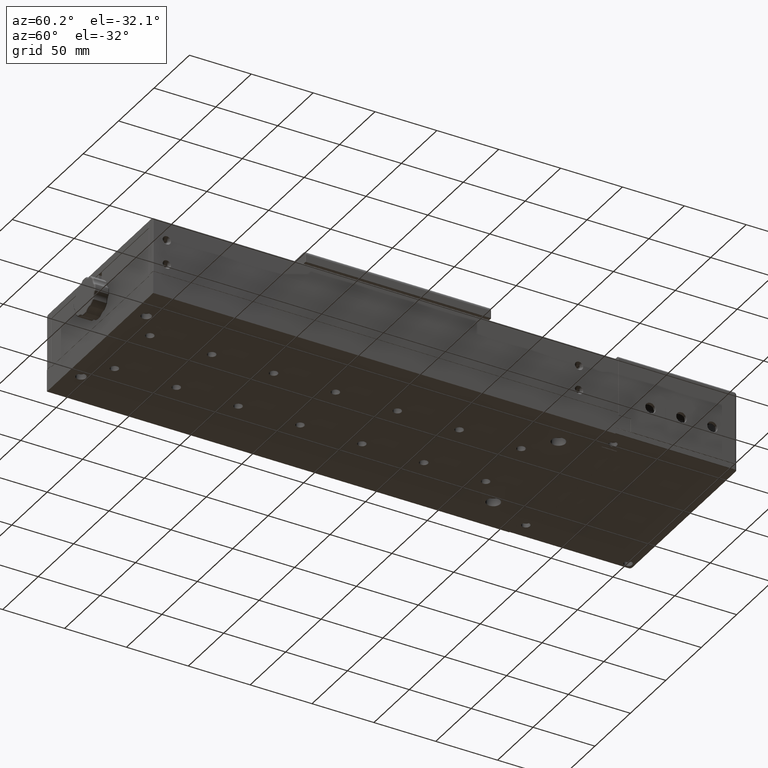
[diagram: clean part render]
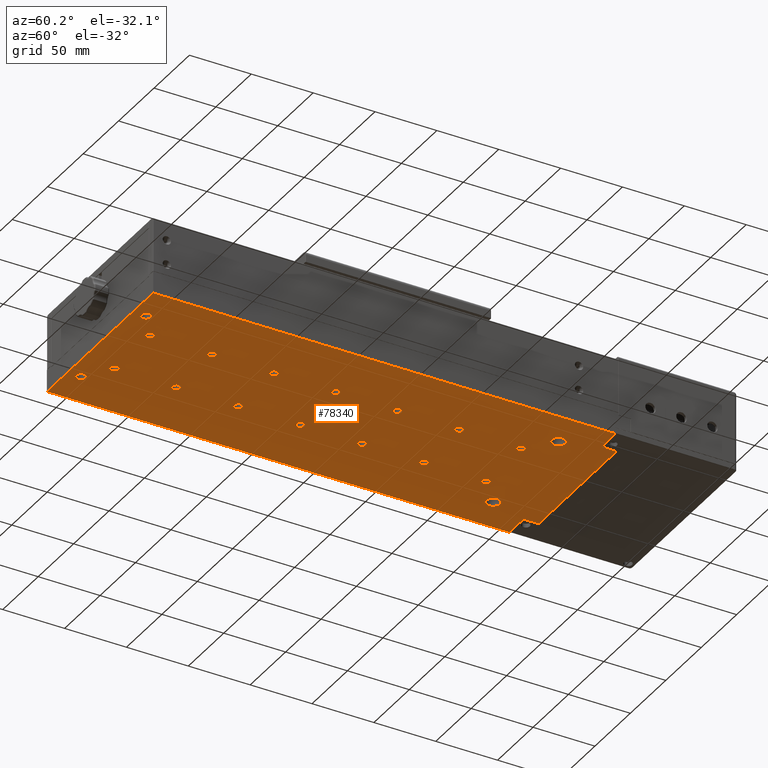
[diagram: same view with one face highlighted and labeled with its STEP entity id]
A machine part, auxiliary view. The second image highlights one B-rep face of the part: STEP entity #78340.
In plain terms, the highlighted planar face has unit normal (0, 0, 1).
Its self-contained STEP definition (entity closure, byte-faithful):
#21 = CIRCLE ( 'NONE', #8953, 3.299999999999997158 ) ;
#92 = CARTESIAN_POINT ( 'NONE',  ( -125.5854323028809887, 263.8311902418279828, -21.95334974644444870 ) ) ;
#376 = DIRECTION ( 'NONE',  ( 0.000000000000000000, 1.000000000000000000, 0.000000000000000000 ) ) ;
#705 = EDGE_CURVE ( 'NONE', #20826, #70421, #11956, .T. ) ;
#842 = CARTESIAN_POINT ( 'NONE',  ( -95.58543230288080395, 216.0311902418279999, -21.95334974644444870 ) ) ;
#869 = LINE ( 'NONE', #25399, #40910 ) ;
#986 = ORIENTED_EDGE ( 'NONE', *, *, #57937, .T. ) ;
#1084 = DIRECTION ( 'NONE',  ( 0.000000000000000000, 1.000000000000000000, 0.000000000000000000 ) ) ;
#1120 = DIRECTION ( 'NONE',  ( 0.000000000000000000, -1.000000000000000000, 0.000000000000000000 ) ) ;
#1170 = DIRECTION ( 'NONE',  ( 0.000000000000000000, 1.000000000000000000, 0.000000000000000000 ) ) ;
#1618 = EDGE_LOOP ( 'NONE', ( #53804, #64914 ) ) ;
#1630 = EDGE_LOOP ( 'NONE', ( #60722, #21272 ) ) ;
#1983 = CARTESIAN_POINT ( 'NONE',  ( -145.5854323028810029, -109.9688097581720001, -21.95334974644444870 ) ) ;
#2063 = VERTEX_POINT ( 'NONE', #5562 ) ;
#2637 = DIRECTION ( 'NONE',  ( 0.000000000000000000, -1.000000000000000000, 0.000000000000000000 ) ) ;
#2675 = EDGE_CURVE ( 'NONE', #61624, #57926, #67382, .T. ) ;
#2847 = DIRECTION ( 'NONE',  ( 0.000000000000000000, 1.000000000000000000, 0.000000000000000000 ) ) ;
#2867 = EDGE_LOOP ( 'NONE', ( #21710, #20650 ) ) ;
#3033 = FACE_BOUND ( 'NONE', #73556, .T. ) ;
#3049 = DIRECTION ( 'NONE',  ( 0.000000000000000000, 0.000000000000000000, 1.000000000000000000 ) ) ;
#3479 = DIRECTION ( 'NONE',  ( 0.000000000000000000, 0.000000000000000000, 1.000000000000000000 ) ) ;
#3680 = CIRCLE ( 'NONE', #16510, 3.299999999999997158 ) ;
#3931 = DIRECTION ( 'NONE',  ( 0.000000000000000000, 0.000000000000000000, 1.000000000000000000 ) ) ;
#4189 = DIRECTION ( 'NONE',  ( -1.000000000000000000, 1.224646799147351975E-16, 0.000000000000000000 ) ) ;
#4206 = LINE ( 'NONE', #66567, #28692 ) ;
#4220 = FACE_BOUND ( 'NONE', #75651, .T. ) ;
#4262 = CARTESIAN_POINT ( 'NONE',  ( -45.58543230288089632, -87.26880975817199726, -21.95334974644444870 ) ) ;
#4554 = AXIS2_PLACEMENT_3D ( 'NONE', #34438, #70659, #15518 ) ;
#5071 = CIRCLE ( 'NONE', #6332, 4.000000000000003553 ) ;
#5562 = CARTESIAN_POINT ( 'NONE',  ( -116.5854323028810029, -94.96880975817200010, -21.95334974644444870 ) ) ;
#5769 = VERTEX_POINT ( 'NONE', #53979 ) ;
#5853 = AXIS2_PLACEMENT_3D ( 'NONE', #68704, #26452, #68303 ) ;
#6280 = DIRECTION ( 'NONE',  ( 0.000000000000000000, 1.000000000000000000, 0.000000000000000000 ) ) ;
#6332 = AXIS2_PLACEMENT_3D ( 'NONE', #75575, #8766, #9155 ) ;
#6454 = VECTOR ( 'NONE', #36711, 1000.000000000000000 ) ;
#6485 = EDGE_CURVE ( 'NONE', #2063, #5769, #40647, .T. ) ;
#6512 = ORIENTED_EDGE ( 'NONE', *, *, #40683, .F. ) ;
#7037 = DIRECTION ( 'NONE',  ( 0.000000000000000000, 1.000000000000000000, 0.000000000000000000 ) ) ;
#7190 = ORIENTED_EDGE ( 'NONE', *, *, #13383, .T. ) ;
#7246 = CARTESIAN_POINT ( 'NONE',  ( -45.58543230288089632, 119.3311902418280113, -21.95334974644444870 ) ) ;
#7257 = CARTESIAN_POINT ( 'NONE',  ( -24.58543230288085013, 234.2311902418280170, -21.95334974644444870 ) ) ;
#7560 = AXIS2_PLACEMENT_3D ( 'NONE', #49274, #25155, #7037 ) ;
#7621 = CARTESIAN_POINT ( 'NONE',  ( -24.58543230288085013, 234.2311902418280170, -21.95334974644444870 ) ) ;
#8128 = CARTESIAN_POINT ( 'NONE',  ( -45.58543230288089632, -30.66880975817205268, -21.95334974644444870 ) ) ;
#8403 = ORIENTED_EDGE ( 'NONE', *, *, #76298, .T. ) ;
#8419 = VERTEX_POINT ( 'NONE', #74635 ) ;
#8647 = EDGE_CURVE ( 'NONE', #17351, #36960, #12415, .T. ) ;
#8766 = DIRECTION ( 'NONE',  ( 0.000000000000000000, 0.000000000000000000, -1.000000000000000000 ) ) ;
#8810 = DIRECTION ( 'NONE',  ( 0.000000000000000000, 0.000000000000000000, 1.000000000000000000 ) ) ;
#8953 = AXIS2_PLACEMENT_3D ( 'NONE', #28403, #3479, #52942 ) ;
#9155 = DIRECTION ( 'NONE',  ( 0.000000000000000000, -1.000000000000000000, 0.000000000000000000 ) ) ;
#9208 = CIRCLE ( 'NONE', #46482, 5.500000000000005329 ) ;
#9830 = ORIENTED_EDGE ( 'NONE', *, *, #24673, .T. ) ;
#10231 = FACE_BOUND ( 'NONE', #31003, .T. ) ;
#10330 = CARTESIAN_POINT ( 'NONE',  ( -45.58543230288089632, -37.26880975817205410, -21.95334974644444870 ) ) ;
#10386 = DIRECTION ( 'NONE',  ( 0.000000000000000000, 0.000000000000000000, 1.000000000000000000 ) ) ;
#10393 = CARTESIAN_POINT ( 'NONE',  ( -24.58543230288085013, 239.7311902418280170, -21.95334974644444870 ) ) ;
#10514 = DIRECTION ( 'NONE',  ( 0.000000000000000000, 1.000000000000000000, 0.000000000000000000 ) ) ;
#10928 = DIRECTION ( 'NONE',  ( 0.000000000000000000, 0.000000000000000000, 1.000000000000000000 ) ) ;
#11074 = VECTOR ( 'NONE', #4189, 1000.000000000000000 ) ;
#11759 = DIRECTION ( 'NONE',  ( 0.000000000000000000, 0.000000000000000000, 1.000000000000000000 ) ) ;
#11956 = CIRCLE ( 'NONE', #42741, 4.000000000000003553 ) ;
#12000 = EDGE_CURVE ( 'NONE', #55115, #16646, #57241, .T. ) ;
#12171 = CARTESIAN_POINT ( 'NONE',  ( 4.414567697119120560, -109.9688097581720001, -21.95334974644444870 ) ) ;
#12199 = CARTESIAN_POINT ( 'NONE',  ( -45.58543230288089632, 19.33119024182800061, -21.95334974644444870 ) ) ;
#12231 = FACE_OUTER_BOUND ( 'NONE', #52003, .T. ) ;
#12327 = CIRCLE ( 'NONE', #22557, 3.299999999999997158 ) ;
#12415 = CIRCLE ( 'NONE', #22709, 3.299999999999997158 ) ;
#12800 = ORIENTED_EDGE ( 'NONE', *, *, #62540, .F. ) ;
#12914 = CARTESIAN_POINT ( 'NONE',  ( -45.58543230288079684, 212.7311902418280170, -21.95334974644444870 ) ) ;
#12994 = VERTEX_POINT ( 'NONE', #15346 ) ;
#13017 = ORIENTED_EDGE ( 'NONE', *, *, #44793, .T. ) ;
#13111 = CARTESIAN_POINT ( 'NONE',  ( -95.58543230288090342, -83.96880975817198589, -21.95334974644444870 ) ) ;
#13175 = EDGE_CURVE ( 'NONE', #16844, #28102, #35455, .T. ) ;
#13247 = AXIS2_PLACEMENT_3D ( 'NONE', #69922, #3931, #46934 ) ;
#13281 = EDGE_CURVE ( 'NONE', #27940, #71586, #21388, .T. ) ;
#13303 = VERTEX_POINT ( 'NONE', #38996 ) ;
#13383 = EDGE_CURVE ( 'NONE', #50871, #70887, #30241, .T. ) ;
#14222 = EDGE_LOOP ( 'NONE', ( #29844, #55646 ) ) ;
#14738 = EDGE_CURVE ( 'NONE', #27756, #13303, #20357, .T. ) ;
#14819 = DIRECTION ( 'NONE',  ( 0.000000000000000000, 0.000000000000000000, -1.000000000000000000 ) ) ;
#14934 = AXIS2_PLACEMENT_3D ( 'NONE', #7257, #55162, #18538 ) ;
#15306 = CARTESIAN_POINT ( 'NONE',  ( -116.5854323028810029, 234.2311902418280170, -21.95334974644444870 ) ) ;
#15346 = CARTESIAN_POINT ( 'NONE',  ( -45.58543230288089632, 69.33119024182799706, -21.95334974644444870 ) ) ;
#15518 = DIRECTION ( 'NONE',  ( 0.000000000000000000, 1.000000000000000000, 0.000000000000000000 ) ) ;
#15526 = CIRCLE ( 'NONE', #60540, 5.500000000000005329 ) ;
#15781 = CARTESIAN_POINT ( 'NONE',  ( -95.58543230288080395, 169.3311902418280113, -21.95334974644444870 ) ) ;
#15821 = DIRECTION ( 'NONE',  ( 0.000000000000000000, 1.000000000000000000, 0.000000000000000000 ) ) ;
#16085 = AXIS2_PLACEMENT_3D ( 'NONE', #33365, #45423, #27333 ) ;
#16422 = CARTESIAN_POINT ( 'NONE',  ( -95.58543230288080395, 166.0311902418280283, -21.95334974644444870 ) ) ;
#16510 = AXIS2_PLACEMENT_3D ( 'NONE', #65657, #10928, #10514 ) ;
#16540 = ORIENTED_EDGE ( 'NONE', *, *, #36539, .F. ) ;
#16646 = VERTEX_POINT ( 'NONE', #63851 ) ;
#16671 = FACE_BOUND ( 'NONE', #1618, .T. ) ;
#16844 = VERTEX_POINT ( 'NONE', #21206 ) ;
#17351 = VERTEX_POINT ( 'NONE', #48004 ) ;
#17472 = VERTEX_POINT ( 'NONE', #31889 ) ;
#17599 = EDGE_CURVE ( 'NONE', #16646, #55115, #70889, .T. ) ;
#17724 = CARTESIAN_POINT ( 'NONE',  ( -15.58543230288080039, 276.0311902418279715, -21.95334974644444870 ) ) ;
#18140 = ORIENTED_EDGE ( 'NONE', *, *, #64853, .F. ) ;
#18213 = CARTESIAN_POINT ( 'NONE',  ( -116.5854323028810029, 228.7311902418280170, -21.95334974644444870 ) ) ;
#18299 = CARTESIAN_POINT ( 'NONE',  ( -45.58543230288089632, 66.03119024182799990, -21.95334974644444870 ) ) ;
#18478 = EDGE_CURVE ( 'NONE', #54043, #12994, #22252, .T. ) ;
#18538 = DIRECTION ( 'NONE',  ( 0.000000000000000000, -1.000000000000000000, 0.000000000000000000 ) ) ;
#18621 = ORIENTED_EDGE ( 'NONE', *, *, #18478, .T. ) ;
#18803 = DIRECTION ( 'NONE',  ( 0.000000000000000000, 1.000000000000000000, 0.000000000000000000 ) ) ;
#19070 = VECTOR ( 'NONE', #44146, 1000.000000000000000 ) ;
#19403 = EDGE_CURVE ( 'NONE', #76847, #8419, #41247, .T. ) ;
#19650 = DIRECTION ( 'NONE',  ( 0.000000000000000000, 0.000000000000000000, 1.000000000000000000 ) ) ;
#19704 = DIRECTION ( 'NONE',  ( 0.000000000000000000, 1.000000000000000000, 0.000000000000000000 ) ) ;
#19718 = DIRECTION ( 'NONE',  ( 0.000000000000000000, 0.000000000000000000, 1.000000000000000000 ) ) ;
#19754 = CARTESIAN_POINT ( 'NONE',  ( -45.58543230288079684, 219.3311902418280113, -21.95334974644444870 ) ) ;
#19886 = CARTESIAN_POINT ( 'NONE',  ( -15.58543230288080039, 263.8311902418279828, -21.95334974644444870 ) ) ;
#19941 = EDGE_CURVE ( 'NONE', #36767, #52858, #55774, .T. ) ;
#20004 = CARTESIAN_POINT ( 'NONE',  ( -116.5854323028810029, -98.96880975817198589, -21.95334974644444870 ) ) ;
#20322 = ORIENTED_EDGE ( 'NONE', *, *, #8647, .T. ) ;
#20357 = CIRCLE ( 'NONE', #57640, 3.300000000000000711 ) ;
#20510 = CARTESIAN_POINT ( 'NONE',  ( -116.5854323028810029, 234.2311902418280170, -21.95334974644444870 ) ) ;
#20650 = ORIENTED_EDGE ( 'NONE', *, *, #66308, .T. ) ;
#20683 = DIRECTION ( 'NONE',  ( 0.000000000000000000, 1.000000000000000000, 0.000000000000000000 ) ) ;
#20817 = EDGE_CURVE ( 'NONE', #59725, #54901, #69997, .T. ) ;
#20826 = VERTEX_POINT ( 'NONE', #52321 ) ;
#21206 = CARTESIAN_POINT ( 'NONE',  ( -95.58543230288080395, 212.7311902418280170, -21.95334974644444870 ) ) ;
#21272 = ORIENTED_EDGE ( 'NONE', *, *, #39471, .T. ) ;
#21368 = DIRECTION ( 'NONE',  ( 0.000000000000000000, 0.000000000000000000, -1.000000000000000000 ) ) ;
#21388 = CIRCLE ( 'NONE', #14934, 5.500000000000005329 ) ;
#21415 = VERTEX_POINT ( 'NONE', #61752 ) ;
#21462 = EDGE_CURVE ( 'NONE', #12994, #54043, #12327, .T. ) ;
#21536 = FACE_BOUND ( 'NONE', #1630, .T. ) ;
#21597 = VERTEX_POINT ( 'NONE', #19886 ) ;
#21710 = ORIENTED_EDGE ( 'NONE', *, *, #14738, .T. ) ;
#22161 = CIRCLE ( 'NONE', #78702, 3.299999999999997158 ) ;
#22190 = DIRECTION ( 'NONE',  ( 0.000000000000000000, 0.000000000000000000, 1.000000000000000000 ) ) ;
#22252 = CIRCLE ( 'NONE', #67226, 3.299999999999997158 ) ;
#22557 = AXIS2_PLACEMENT_3D ( 'NONE', #18299, #55325, #36804 ) ;
#22564 = CARTESIAN_POINT ( 'NONE',  ( -45.58543230288089632, 16.03119024182799990, -21.95334974644444870 ) ) ;
#22709 = AXIS2_PLACEMENT_3D ( 'NONE', #45206, #46390, #15821 ) ;
#22878 = EDGE_CURVE ( 'NONE', #37940, #49170, #31013, .T. ) ;
#23123 = FACE_BOUND ( 'NONE', #57629, .T. ) ;
#23350 = DIRECTION ( 'NONE',  ( 0.000000000000000000, 0.000000000000000000, -1.000000000000000000 ) ) ;
#24284 = CIRCLE ( 'NONE', #7560, 3.300000000000000711 ) ;
#24314 = ORIENTED_EDGE ( 'NONE', *, *, #28626, .F. ) ;
#24329 = FACE_BOUND ( 'NONE', #79569, .T. ) ;
#24489 = EDGE_CURVE ( 'NONE', #46022, #58326, #78325, .T. ) ;
#24673 = EDGE_CURVE ( 'NONE', #70887, #50871, #60330, .T. ) ;
#24813 = CARTESIAN_POINT ( 'NONE',  ( -45.58543230288089632, 16.03119024182799990, -21.95334974644444870 ) ) ;
#25014 = DIRECTION ( 'NONE',  ( 1.000000000000000000, -1.224646799147351975E-16, 0.000000000000000000 ) ) ;
#25155 = DIRECTION ( 'NONE',  ( 0.000000000000000000, 0.000000000000000000, 1.000000000000000000 ) ) ;
#25399 = CARTESIAN_POINT ( 'NONE',  ( -145.5854323028810029, -109.9688097581720001, -21.95334974644444870 ) ) ;
#25407 = DIRECTION ( 'NONE',  ( 0.000000000000000000, 0.000000000000000000, 1.000000000000000000 ) ) ;
#25681 = CIRCLE ( 'NONE', #52664, 3.299999999999997158 ) ;
#25916 = EDGE_CURVE ( 'NONE', #5769, #2063, #28138, .T. ) ;
#26366 = EDGE_LOOP ( 'NONE', ( #8403, #68693 ) ) ;
#26452 = DIRECTION ( 'NONE',  ( 0.000000000000000000, 0.000000000000000000, 1.000000000000000000 ) ) ;
#26559 = EDGE_CURVE ( 'NONE', #58326, #46022, #25681, .T. ) ;
#26855 = EDGE_LOOP ( 'NONE', ( #13017, #41678 ) ) ;
#27048 = DIRECTION ( 'NONE',  ( 0.000000000000000000, 1.000000000000000000, 0.000000000000000000 ) ) ;
#27053 = ORIENTED_EDGE ( 'NONE', *, *, #28182, .F. ) ;
#27263 = EDGE_CURVE ( 'NONE', #37812, #17472, #38579, .T. ) ;
#27333 = DIRECTION ( 'NONE',  ( 0.000000000000000000, 1.000000000000000000, 0.000000000000000000 ) ) ;
#27756 = VERTEX_POINT ( 'NONE', #12199 ) ;
#27804 = LINE ( 'NONE', #72444, #59070 ) ;
#27885 = EDGE_CURVE ( 'NONE', #30827, #76123, #15526, .T. ) ;
#27940 = VERTEX_POINT ( 'NONE', #10393 ) ;
#28102 = VERTEX_POINT ( 'NONE', #55464 ) ;
#28138 = CIRCLE ( 'NONE', #78240, 4.000000000000003553 ) ;
#28182 = EDGE_CURVE ( 'NONE', #59838, #67961, #74745, .T. ) ;
#28187 = CARTESIAN_POINT ( 'NONE',  ( -95.58543230288080395, 166.0311902418280283, -21.95334974644444870 ) ) ;
#28268 = CIRCLE ( 'NONE', #46215, 3.300000000000000711 ) ;
#28356 = CARTESIAN_POINT ( 'NONE',  ( -116.5854323028810029, -98.96880975817198589, -21.95334974644444870 ) ) ;
#28403 = CARTESIAN_POINT ( 'NONE',  ( -45.58543230288089632, 116.0311902418279999, -21.95334974644444870 ) ) ;
#28495 = CARTESIAN_POINT ( 'NONE',  ( -95.58543230288090342, 69.33119024182799706, -21.95334974644444870 ) ) ;
#28626 = EDGE_CURVE ( 'NONE', #49170, #59838, #41139, .T. ) ;
#28692 = VECTOR ( 'NONE', #28744, 1000.000000000000000 ) ;
#28729 = LINE ( 'NONE', #77821, #11074 ) ;
#28744 = DIRECTION ( 'NONE',  ( -1.224646799147351975E-16, -1.000000000000000000, 0.000000000000000000 ) ) ;
#28773 = DIRECTION ( 'NONE',  ( 0.000000000000000000, 1.000000000000000000, 0.000000000000000000 ) ) ;
#28970 = CARTESIAN_POINT ( 'NONE',  ( -95.58543230288090342, 66.03119024182799990, -21.95334974644444870 ) ) ;
#29164 = ORIENTED_EDGE ( 'NONE', *, *, #24489, .T. ) ;
#29561 = FACE_BOUND ( 'NONE', #75899, .T. ) ;
#29827 = ORIENTED_EDGE ( 'NONE', *, *, #19941, .T. ) ;
#29844 = ORIENTED_EDGE ( 'NONE', *, *, #74666, .F. ) ;
#30127 = EDGE_LOOP ( 'NONE', ( #42059, #43867 ) ) ;
#30241 = CIRCLE ( 'NONE', #16085, 3.299999999999997158 ) ;
#30304 = CARTESIAN_POINT ( 'NONE',  ( -95.58543230288080395, 112.7311902418280027, -21.95334974644444870 ) ) ;
#30446 = EDGE_CURVE ( 'NONE', #52858, #36767, #67921, .T. ) ;
#30827 = VERTEX_POINT ( 'NONE', #18213 ) ;
#31003 = EDGE_LOOP ( 'NONE', ( #36124, #16540 ) ) ;
#31013 = LINE ( 'NONE', #78236, #39750 ) ;
#31129 = DIRECTION ( 'NONE',  ( 0.000000000000000000, 0.000000000000000000, 1.000000000000000000 ) ) ;
#31344 = DIRECTION ( 'NONE',  ( 0.000000000000000000, 0.000000000000000000, 1.000000000000000000 ) ) ;
#31668 = DIRECTION ( 'NONE',  ( 0.000000000000000000, 0.000000000000000000, 1.000000000000000000 ) ) ;
#31824 = DIRECTION ( 'NONE',  ( 0.000000000000000000, 1.000000000000000000, 0.000000000000000000 ) ) ;
#31889 = CARTESIAN_POINT ( 'NONE',  ( -95.58543230288090342, -30.66880975817205268, -21.95334974644444870 ) ) ;
#32284 = AXIS2_PLACEMENT_3D ( 'NONE', #38618, #63178, #51096 ) ;
#32291 = ORIENTED_EDGE ( 'NONE', *, *, #27263, .T. ) ;
#32478 = VERTEX_POINT ( 'NONE', #35545 ) ;
#33212 = ORIENTED_EDGE ( 'NONE', *, *, #64572, .T. ) ;
#33365 = CARTESIAN_POINT ( 'NONE',  ( -45.58543230288079684, 216.0311902418279999, -21.95334974644444870 ) ) ;
#34438 = CARTESIAN_POINT ( 'NONE',  ( -45.58543230288089632, 116.0311902418279999, -21.95334974644444870 ) ) ;
#34576 = CARTESIAN_POINT ( 'NONE',  ( -95.58543230288090342, 62.73119024182799564, -21.95334974644444870 ) ) ;
#34749 = EDGE_CURVE ( 'NONE', #32478, #75441, #67303, .T. ) ;
#34883 = CARTESIAN_POINT ( 'NONE',  ( -24.58543230288085013, 228.7311902418280170, -21.95334974644444870 ) ) ;
#35151 = ORIENTED_EDGE ( 'NONE', *, *, #34749, .F. ) ;
#35278 = DIRECTION ( 'NONE',  ( 0.000000000000000000, 1.000000000000000000, 0.000000000000000000 ) ) ;
#35455 = CIRCLE ( 'NONE', #45775, 3.299999999999997158 ) ;
#35459 = AXIS2_PLACEMENT_3D ( 'NONE', #16422, #10386, #58707 ) ;
#35545 = CARTESIAN_POINT ( 'NONE',  ( 4.414567697119120560, -109.9688097581720001, -21.95334974644444870 ) ) ;
#35754 = VERTEX_POINT ( 'NONE', #63653 ) ;
#36124 = ORIENTED_EDGE ( 'NONE', *, *, #27885, .F. ) ;
#36166 = VERTEX_POINT ( 'NONE', #7246 ) ;
#36299 = EDGE_LOOP ( 'NONE', ( #20322, #986 ) ) ;
#36445 = DIRECTION ( 'NONE',  ( 0.000000000000000000, 0.000000000000000000, 1.000000000000000000 ) ) ;
#36539 = EDGE_CURVE ( 'NONE', #76123, #30827, #9208, .T. ) ;
#36711 = DIRECTION ( 'NONE',  ( 1.224646799147351975E-16, 1.000000000000000000, 0.000000000000000000 ) ) ;
#36767 = VERTEX_POINT ( 'NONE', #63833 ) ;
#36804 = DIRECTION ( 'NONE',  ( 0.000000000000000000, 1.000000000000000000, 0.000000000000000000 ) ) ;
#36960 = VERTEX_POINT ( 'NONE', #4262 ) ;
#37572 = CARTESIAN_POINT ( 'NONE',  ( -95.58543230288090342, -80.66880975817198873, -21.95334974644444870 ) ) ;
#37812 = VERTEX_POINT ( 'NONE', #64811 ) ;
#37940 = VERTEX_POINT ( 'NONE', #17724 ) ;
#38177 = DIRECTION ( 'NONE',  ( 0.000000000000000000, -1.000000000000000000, 0.000000000000000000 ) ) ;
#38579 = CIRCLE ( 'NONE', #46258, 3.300000000000000711 ) ;
#38618 = CARTESIAN_POINT ( 'NONE',  ( -95.58543230288090342, -33.96880975817204984, -21.95334974644444870 ) ) ;
#38776 = DIRECTION ( 'NONE',  ( 0.000000000000000000, 0.000000000000000000, 1.000000000000000000 ) ) ;
#38996 = CARTESIAN_POINT ( 'NONE',  ( -45.58543230288089632, 12.73119024182800096, -21.95334974644444870 ) ) ;
#39206 = CIRCLE ( 'NONE', #4554, 3.299999999999997158 ) ;
#39471 = EDGE_CURVE ( 'NONE', #54901, #59725, #70151, .T. ) ;
#39619 = FACE_BOUND ( 'NONE', #26366, .T. ) ;
#39750 = VECTOR ( 'NONE', #55567, 1000.000000000000000 ) ;
#40242 = CIRCLE ( 'NONE', #13247, 3.299999999999997158 ) ;
#40647 = CIRCLE ( 'NONE', #59920, 4.000000000000003553 ) ;
#40683 = EDGE_CURVE ( 'NONE', #67961, #72418, #4206, .T. ) ;
#40887 = AXIS2_PLACEMENT_3D ( 'NONE', #65893, #43726, #18803 ) ;
#40910 = VECTOR ( 'NONE', #25014, 1000.000000000000000 ) ;
#41139 = LINE ( 'NONE', #78193, #62538 ) ;
#41247 = CIRCLE ( 'NONE', #54090, 3.299999999999997158 ) ;
#41590 = CARTESIAN_POINT ( 'NONE',  ( -145.5854323028810029, -109.9688097581720001, -21.95334974644444870 ) ) ;
#41662 = CARTESIAN_POINT ( 'NONE',  ( -95.58543230288090342, -33.96880975817204984, -21.95334974644444870 ) ) ;
#41678 = ORIENTED_EDGE ( 'NONE', *, *, #78994, .T. ) ;
#41718 = AXIS2_PLACEMENT_3D ( 'NONE', #28187, #70435, #64785 ) ;
#42059 = ORIENTED_EDGE ( 'NONE', *, *, #25916, .F. ) ;
#42335 = CARTESIAN_POINT ( 'NONE',  ( -95.58543230288080395, 216.0311902418279999, -21.95334974644444870 ) ) ;
#42741 = AXIS2_PLACEMENT_3D ( 'NONE', #53939, #23350, #47869 ) ;
#42882 = AXIS2_PLACEMENT_3D ( 'NONE', #13111, #3049, #28773 ) ;
#43726 = DIRECTION ( 'NONE',  ( 0.000000000000000000, 0.000000000000000000, 1.000000000000000000 ) ) ;
#43756 = EDGE_LOOP ( 'NONE', ( #66177, #18140 ) ) ;
#43867 = ORIENTED_EDGE ( 'NONE', *, *, #6485, .F. ) ;
#43874 = CARTESIAN_POINT ( 'NONE',  ( -95.58543230288090342, 16.03119024182795016, -21.95334974644444870 ) ) ;
#43993 = CARTESIAN_POINT ( 'NONE',  ( -145.5854323028810029, 263.8311902418279828, -21.95334974644444870 ) ) ;
#44069 = EDGE_LOOP ( 'NONE', ( #63056, #79133 ) ) ;
#44146 = DIRECTION ( 'NONE',  ( -1.000000000000000000, 1.224646799147351975E-16, 0.000000000000000000 ) ) ;
#44522 = DIRECTION ( 'NONE',  ( 0.000000000000000000, 0.000000000000000000, -1.000000000000000000 ) ) ;
#44570 = ORIENTED_EDGE ( 'NONE', *, *, #26559, .T. ) ;
#44793 = EDGE_CURVE ( 'NONE', #35754, #21415, #24284, .T. ) ;
#44905 = CARTESIAN_POINT ( 'NONE',  ( -45.58543230288089632, -33.96880975817204984, -21.95334974644444870 ) ) ;
#45206 = CARTESIAN_POINT ( 'NONE',  ( -45.58543230288089632, -83.96880975817198589, -21.95334974644444870 ) ) ;
#45397 = AXIS2_PLACEMENT_3D ( 'NONE', #41590, #31129, #48040 ) ;
#45423 = DIRECTION ( 'NONE',  ( 0.000000000000000000, 0.000000000000000000, 1.000000000000000000 ) ) ;
#45518 = EDGE_CURVE ( 'NONE', #21597, #37940, #27804, .T. ) ;
#45775 = AXIS2_PLACEMENT_3D ( 'NONE', #842, #19718, #49099 ) ;
#45883 = DIRECTION ( 'NONE',  ( 0.000000000000000000, -1.000000000000000000, 0.000000000000000000 ) ) ;
#45920 = CARTESIAN_POINT ( 'NONE',  ( -45.58543230288089632, 166.0311902418280283, -21.95334974644444870 ) ) ;
#46002 = AXIS2_PLACEMENT_3D ( 'NONE', #24813, #67059, #1084 ) ;
#46022 = VERTEX_POINT ( 'NONE', #28495 ) ;
#46044 = FACE_BOUND ( 'NONE', #30127, .T. ) ;
#46215 = AXIS2_PLACEMENT_3D ( 'NONE', #44905, #31668, #56232 ) ;
#46258 = AXIS2_PLACEMENT_3D ( 'NONE', #41662, #36445, #73867 ) ;
#46390 = DIRECTION ( 'NONE',  ( 0.000000000000000000, 0.000000000000000000, 1.000000000000000000 ) ) ;
#46482 = AXIS2_PLACEMENT_3D ( 'NONE', #15306, #21368, #45883 ) ;
#46934 = DIRECTION ( 'NONE',  ( 0.000000000000000000, 1.000000000000000000, 0.000000000000000000 ) ) ;
#47180 = DIRECTION ( 'NONE',  ( -1.224646799147351975E-16, -1.000000000000000000, 0.000000000000000000 ) ) ;
#47242 = FACE_BOUND ( 'NONE', #43756, .T. ) ;
#47641 = FACE_BOUND ( 'NONE', #26855, .T. ) ;
#47869 = DIRECTION ( 'NONE',  ( 0.000000000000000000, -1.000000000000000000, 0.000000000000000000 ) ) ;
#48004 = CARTESIAN_POINT ( 'NONE',  ( -45.58543230288089632, -80.66880975817198873, -21.95334974644444870 ) ) ;
#48040 = DIRECTION ( 'NONE',  ( 1.000000000000000000, 0.000000000000000000, 0.000000000000000000 ) ) ;
#48540 = EDGE_CURVE ( 'NONE', #17472, #37812, #48995, .T. ) ;
#48995 = CIRCLE ( 'NONE', #32284, 3.300000000000000711 ) ;
#49099 = DIRECTION ( 'NONE',  ( 0.000000000000000000, 1.000000000000000000, 0.000000000000000000 ) ) ;
#49170 = VERTEX_POINT ( 'NONE', #79538 ) ;
#49274 = CARTESIAN_POINT ( 'NONE',  ( -95.58543230288090342, 16.03119024182795016, -21.95334974644444870 ) ) ;
#49287 = CARTESIAN_POINT ( 'NONE',  ( 4.414567697119175627, 263.8311902418279828, -21.95334974644444870 ) ) ;
#49927 = CARTESIAN_POINT ( 'NONE',  ( -45.58543230288089632, 112.7311902418280027, -21.95334974644444870 ) ) ;
#50871 = VERTEX_POINT ( 'NONE', #12914 ) ;
#50927 = ORIENTED_EDGE ( 'NONE', *, *, #13175, .T. ) ;
#51096 = DIRECTION ( 'NONE',  ( 0.000000000000000000, 1.000000000000000000, 0.000000000000000000 ) ) ;
#51911 = CIRCLE ( 'NONE', #59614, 5.500000000000005329 ) ;
#52003 = EDGE_LOOP ( 'NONE', ( #67995, #73698, #12800, #35151, #55518, #6512, #27053, #24314 ) ) ;
#52111 = FACE_BOUND ( 'NONE', #2867, .T. ) ;
#52321 = CARTESIAN_POINT ( 'NONE',  ( -24.58543230288090342, -102.9688097581719859, -21.95334974644444870 ) ) ;
#52664 = AXIS2_PLACEMENT_3D ( 'NONE', #61960, #8810, #19704 ) ;
#52858 = VERTEX_POINT ( 'NONE', #37572 ) ;
#52892 = DIRECTION ( 'NONE',  ( 0.000000000000000000, 0.000000000000000000, -1.000000000000000000 ) ) ;
#52942 = DIRECTION ( 'NONE',  ( 0.000000000000000000, 1.000000000000000000, 0.000000000000000000 ) ) ;
#53684 = ORIENTED_EDGE ( 'NONE', *, *, #30446, .T. ) ;
#53804 = ORIENTED_EDGE ( 'NONE', *, *, #2675, .T. ) ;
#53939 = CARTESIAN_POINT ( 'NONE',  ( -24.58543230288090342, -98.96880975817198589, -21.95334974644444870 ) ) ;
#53979 = CARTESIAN_POINT ( 'NONE',  ( -116.5854323028810029, -102.9688097581719859, -21.95334974644444870 ) ) ;
#54043 = VERTEX_POINT ( 'NONE', #55027 ) ;
#54090 = AXIS2_PLACEMENT_3D ( 'NONE', #60829, #19650, #1170 ) ;
#54198 = AXIS2_PLACEMENT_3D ( 'NONE', #45920, #22190, #27048 ) ;
#54901 = VERTEX_POINT ( 'NONE', #70905 ) ;
#55027 = CARTESIAN_POINT ( 'NONE',  ( -45.58543230288089632, 62.73119024182799564, -21.95334974644444870 ) ) ;
#55115 = VERTEX_POINT ( 'NONE', #62725 ) ;
#55162 = DIRECTION ( 'NONE',  ( 0.000000000000000000, 0.000000000000000000, -1.000000000000000000 ) ) ;
#55325 = DIRECTION ( 'NONE',  ( 0.000000000000000000, 0.000000000000000000, 1.000000000000000000 ) ) ;
#55464 = CARTESIAN_POINT ( 'NONE',  ( -95.58543230288080395, 219.3311902418280113, -21.95334974644444870 ) ) ;
#55518 = ORIENTED_EDGE ( 'NONE', *, *, #64777, .F. ) ;
#55567 = DIRECTION ( 'NONE',  ( -1.000000000000000000, 1.224646799147351975E-16, 0.000000000000000000 ) ) ;
#55646 = ORIENTED_EDGE ( 'NONE', *, *, #13281, .F. ) ;
#55656 = DIRECTION ( 'NONE',  ( 0.000000000000000000, 0.000000000000000000, -1.000000000000000000 ) ) ;
#55774 = CIRCLE ( 'NONE', #42882, 3.299999999999997158 ) ;
#56232 = DIRECTION ( 'NONE',  ( 0.000000000000000000, 1.000000000000000000, 0.000000000000000000 ) ) ;
#57102 = CIRCLE ( 'NONE', #69953, 3.300000000000000711 ) ;
#57241 = CIRCLE ( 'NONE', #5853, 3.299999999999997158 ) ;
#57629 = EDGE_LOOP ( 'NONE', ( #67648, #32291 ) ) ;
#57640 = AXIS2_PLACEMENT_3D ( 'NONE', #22564, #38776, #20683 ) ;
#57926 = VERTEX_POINT ( 'NONE', #10330 ) ;
#57937 = EDGE_CURVE ( 'NONE', #36960, #17351, #40242, .T. ) ;
#58147 = FACE_BOUND ( 'NONE', #76125, .T. ) ;
#58326 = VERTEX_POINT ( 'NONE', #34576 ) ;
#58383 = DIRECTION ( 'NONE',  ( 1.224646799147351975E-16, 1.000000000000000000, 0.000000000000000000 ) ) ;
#58707 = DIRECTION ( 'NONE',  ( 0.000000000000000000, 1.000000000000000000, 0.000000000000000000 ) ) ;
#59070 = VECTOR ( 'NONE', #58383, 1000.000000000000000 ) ;
#59327 = FACE_BOUND ( 'NONE', #36299, .T. ) ;
#59422 = CARTESIAN_POINT ( 'NONE',  ( -24.58543230288090342, -94.96880975817200010, -21.95334974644444870 ) ) ;
#59614 = AXIS2_PLACEMENT_3D ( 'NONE', #7621, #14819, #38177 ) ;
#59725 = VERTEX_POINT ( 'NONE', #15781 ) ;
#59838 = VERTEX_POINT ( 'NONE', #92 ) ;
#59920 = AXIS2_PLACEMENT_3D ( 'NONE', #28356, #52892, #2637 ) ;
#60168 = CIRCLE ( 'NONE', #46002, 3.300000000000000711 ) ;
#60330 = CIRCLE ( 'NONE', #66766, 3.299999999999997158 ) ;
#60540 = AXIS2_PLACEMENT_3D ( 'NONE', #20510, #55656, #75628 ) ;
#60722 = ORIENTED_EDGE ( 'NONE', *, *, #20817, .T. ) ;
#60829 = CARTESIAN_POINT ( 'NONE',  ( -95.58543230288080395, 116.0311902418279999, -21.95334974644444870 ) ) ;
#60861 = DIRECTION ( 'NONE',  ( 0.000000000000000000, 1.000000000000000000, 0.000000000000000000 ) ) ;
#61323 = ORIENTED_EDGE ( 'NONE', *, *, #19403, .T. ) ;
#61624 = VERTEX_POINT ( 'NONE', #8128 ) ;
#61668 = AXIS2_PLACEMENT_3D ( 'NONE', #28970, #76857, #2847 ) ;
#61752 = CARTESIAN_POINT ( 'NONE',  ( -95.58543230288090342, 12.73119024182796011, -21.95334974644444870 ) ) ;
#61960 = CARTESIAN_POINT ( 'NONE',  ( -95.58543230288090342, 66.03119024182799990, -21.95334974644444870 ) ) ;
#62177 = DIRECTION ( 'NONE',  ( 0.000000000000000000, 0.000000000000000000, 1.000000000000000000 ) ) ;
#62538 = VECTOR ( 'NONE', #47180, 1000.000000000000000 ) ;
#62540 = EDGE_CURVE ( 'NONE', #75441, #21597, #28729, .T. ) ;
#62725 = CARTESIAN_POINT ( 'NONE',  ( -45.58543230288089632, 162.7311902418279885, -21.95334974644444870 ) ) ;
#63056 = ORIENTED_EDGE ( 'NONE', *, *, #17599, .T. ) ;
#63178 = DIRECTION ( 'NONE',  ( 0.000000000000000000, 0.000000000000000000, 1.000000000000000000 ) ) ;
#63653 = CARTESIAN_POINT ( 'NONE',  ( -95.58543230288090342, 19.33119024182795087, -21.95334974644444870 ) ) ;
#63833 = CARTESIAN_POINT ( 'NONE',  ( -95.58543230288090342, -87.26880975817211095, -21.95334974644444870 ) ) ;
#63851 = CARTESIAN_POINT ( 'NONE',  ( -45.58543230288089632, 169.3311902418280113, -21.95334974644444870 ) ) ;
#64572 = EDGE_CURVE ( 'NONE', #8419, #76847, #3680, .T. ) ;
#64777 = EDGE_CURVE ( 'NONE', #72418, #32478, #869, .T. ) ;
#64785 = DIRECTION ( 'NONE',  ( 0.000000000000000000, 1.000000000000000000, 0.000000000000000000 ) ) ;
#64811 = CARTESIAN_POINT ( 'NONE',  ( -95.58543230288090342, -37.26880975817205410, -21.95334974644444870 ) ) ;
#64853 = EDGE_CURVE ( 'NONE', #70421, #20826, #5071, .T. ) ;
#64914 = ORIENTED_EDGE ( 'NONE', *, *, #69322, .T. ) ;
#65657 = CARTESIAN_POINT ( 'NONE',  ( -95.58543230288080395, 116.0311902418279999, -21.95334974644444870 ) ) ;
#65893 = CARTESIAN_POINT ( 'NONE',  ( -95.58543230288090342, -83.96880975817198589, -21.95334974644444870 ) ) ;
#66177 = ORIENTED_EDGE ( 'NONE', *, *, #705, .F. ) ;
#66263 = DIRECTION ( 'NONE',  ( 0.000000000000000000, 0.000000000000000000, 1.000000000000000000 ) ) ;
#66308 = EDGE_CURVE ( 'NONE', #13303, #27756, #60168, .T. ) ;
#66567 = CARTESIAN_POINT ( 'NONE',  ( -145.5854323028810029, -109.9688097581720001, -21.95334974644444870 ) ) ;
#66766 = AXIS2_PLACEMENT_3D ( 'NONE', #67971, #31344, #376 ) ;
#67059 = DIRECTION ( 'NONE',  ( 0.000000000000000000, 0.000000000000000000, 1.000000000000000000 ) ) ;
#67226 = AXIS2_PLACEMENT_3D ( 'NONE', #78347, #66263, #35278 ) ;
#67303 = LINE ( 'NONE', #12171, #6454 ) ;
#67382 = CIRCLE ( 'NONE', #69766, 3.300000000000000711 ) ;
#67648 = ORIENTED_EDGE ( 'NONE', *, *, #48540, .T. ) ;
#67921 = CIRCLE ( 'NONE', #40887, 3.299999999999997158 ) ;
#67961 = VERTEX_POINT ( 'NONE', #43993 ) ;
#67971 = CARTESIAN_POINT ( 'NONE',  ( -45.58543230288079684, 216.0311902418279999, -21.95334974644444870 ) ) ;
#67995 = ORIENTED_EDGE ( 'NONE', *, *, #22878, .F. ) ;
#68217 = CARTESIAN_POINT ( 'NONE',  ( -45.58543230288089632, -33.96880975817204984, -21.95334974644444870 ) ) ;
#68303 = DIRECTION ( 'NONE',  ( 0.000000000000000000, 1.000000000000000000, 0.000000000000000000 ) ) ;
#68693 = ORIENTED_EDGE ( 'NONE', *, *, #69432, .T. ) ;
#68704 = CARTESIAN_POINT ( 'NONE',  ( -45.58543230288089632, 166.0311902418280283, -21.95334974644444870 ) ) ;
#69322 = EDGE_CURVE ( 'NONE', #57926, #61624, #28268, .T. ) ;
#69432 = EDGE_CURVE ( 'NONE', #78923, #36166, #21, .T. ) ;
#69766 = AXIS2_PLACEMENT_3D ( 'NONE', #68217, #62177, #6280 ) ;
#69922 = CARTESIAN_POINT ( 'NONE',  ( -45.58543230288089632, -83.96880975817198589, -21.95334974644444870 ) ) ;
#69953 = AXIS2_PLACEMENT_3D ( 'NONE', #43874, #25407, #31824 ) ;
#69997 = CIRCLE ( 'NONE', #41718, 3.299999999999997158 ) ;
#70000 = ORIENTED_EDGE ( 'NONE', *, *, #73610, .T. ) ;
#70151 = CIRCLE ( 'NONE', #35459, 3.299999999999997158 ) ;
#70421 = VERTEX_POINT ( 'NONE', #59422 ) ;
#70435 = DIRECTION ( 'NONE',  ( 0.000000000000000000, 0.000000000000000000, 1.000000000000000000 ) ) ;
#70513 = ORIENTED_EDGE ( 'NONE', *, *, #21462, .T. ) ;
#70659 = DIRECTION ( 'NONE',  ( 0.000000000000000000, 0.000000000000000000, 1.000000000000000000 ) ) ;
#70887 = VERTEX_POINT ( 'NONE', #19754 ) ;
#70889 = CIRCLE ( 'NONE', #54198, 3.299999999999997158 ) ;
#70905 = CARTESIAN_POINT ( 'NONE',  ( -95.58543230288080395, 162.7311902418279885, -21.95334974644444870 ) ) ;
#71586 = VERTEX_POINT ( 'NONE', #34883 ) ;
#71803 = FACE_BOUND ( 'NONE', #14222, .T. ) ;
#72198 = FACE_BOUND ( 'NONE', #75631, .T. ) ;
#72418 = VERTEX_POINT ( 'NONE', #1983 ) ;
#72444 = CARTESIAN_POINT ( 'NONE',  ( -15.58543230288080039, 276.0311902418279715, -21.95334974644444870 ) ) ;
#73556 = EDGE_LOOP ( 'NONE', ( #29164, #44570 ) ) ;
#73610 = EDGE_CURVE ( 'NONE', #28102, #16844, #22161, .T. ) ;
#73698 = ORIENTED_EDGE ( 'NONE', *, *, #45518, .F. ) ;
#73799 = PLANE ( 'NONE',  #45397 ) ;
#73867 = DIRECTION ( 'NONE',  ( 0.000000000000000000, 1.000000000000000000, 0.000000000000000000 ) ) ;
#74333 = CARTESIAN_POINT ( 'NONE',  ( -116.5854323028810029, 239.7311902418280170, -21.95334974644444870 ) ) ;
#74635 = CARTESIAN_POINT ( 'NONE',  ( -95.58543230288080395, 119.3311902418280113, -21.95334974644444870 ) ) ;
#74666 = EDGE_CURVE ( 'NONE', #71586, #27940, #51911, .T. ) ;
#74745 = LINE ( 'NONE', #75539, #19070 ) ;
#75441 = VERTEX_POINT ( 'NONE', #49287 ) ;
#75539 = CARTESIAN_POINT ( 'NONE',  ( -145.5854323028810029, 263.8311902418279828, -21.95334974644444870 ) ) ;
#75575 = CARTESIAN_POINT ( 'NONE',  ( -24.58543230288090342, -98.96880975817198589, -21.95334974644444870 ) ) ;
#75628 = DIRECTION ( 'NONE',  ( 0.000000000000000000, -1.000000000000000000, 0.000000000000000000 ) ) ;
#75631 = EDGE_LOOP ( 'NONE', ( #70513, #18621 ) ) ;
#75651 = EDGE_LOOP ( 'NONE', ( #53684, #29827 ) ) ;
#75899 = EDGE_LOOP ( 'NONE', ( #70000, #50927 ) ) ;
#76123 = VERTEX_POINT ( 'NONE', #74333 ) ;
#76125 = EDGE_LOOP ( 'NONE', ( #33212, #61323 ) ) ;
#76298 = EDGE_CURVE ( 'NONE', #36166, #78923, #39206, .T. ) ;
#76648 = FACE_BOUND ( 'NONE', #44069, .T. ) ;
#76847 = VERTEX_POINT ( 'NONE', #30304 ) ;
#76857 = DIRECTION ( 'NONE',  ( 0.000000000000000000, 0.000000000000000000, 1.000000000000000000 ) ) ;
#77821 = CARTESIAN_POINT ( 'NONE',  ( 4.414567697119175627, 263.8311902418279828, -21.95334974644444870 ) ) ;
#78193 = CARTESIAN_POINT ( 'NONE',  ( -125.5854323028809887, 276.0311902418279715, -21.95334974644444870 ) ) ;
#78236 = CARTESIAN_POINT ( 'NONE',  ( -145.5854323028810029, 276.0311902418279715, -21.95334974644444870 ) ) ;
#78240 = AXIS2_PLACEMENT_3D ( 'NONE', #20004, #44522, #1120 ) ;
#78325 = CIRCLE ( 'NONE', #61668, 3.299999999999997158 ) ;
#78340 = ADVANCED_FACE ( 'NONE', ( #46044, #47242, #71803, #10231, #59327, #4220, #16671, #23123, #52111, #47641, #72198, #3033, #39619, #58147, #76648, #21536, #24329, #29561, #12231 ), #73799, .F. ) ;
#78347 = CARTESIAN_POINT ( 'NONE',  ( -45.58543230288089632, 66.03119024182799990, -21.95334974644444870 ) ) ;
#78702 = AXIS2_PLACEMENT_3D ( 'NONE', #42335, #11759, #60861 ) ;
#78923 = VERTEX_POINT ( 'NONE', #49927 ) ;
#78994 = EDGE_CURVE ( 'NONE', #21415, #35754, #57102, .T. ) ;
#79133 = ORIENTED_EDGE ( 'NONE', *, *, #12000, .T. ) ;
#79538 = CARTESIAN_POINT ( 'NONE',  ( -125.5854323028809887, 276.0311902418279715, -21.95334974644444870 ) ) ;
#79569 = EDGE_LOOP ( 'NONE', ( #9830, #7190 ) ) ;